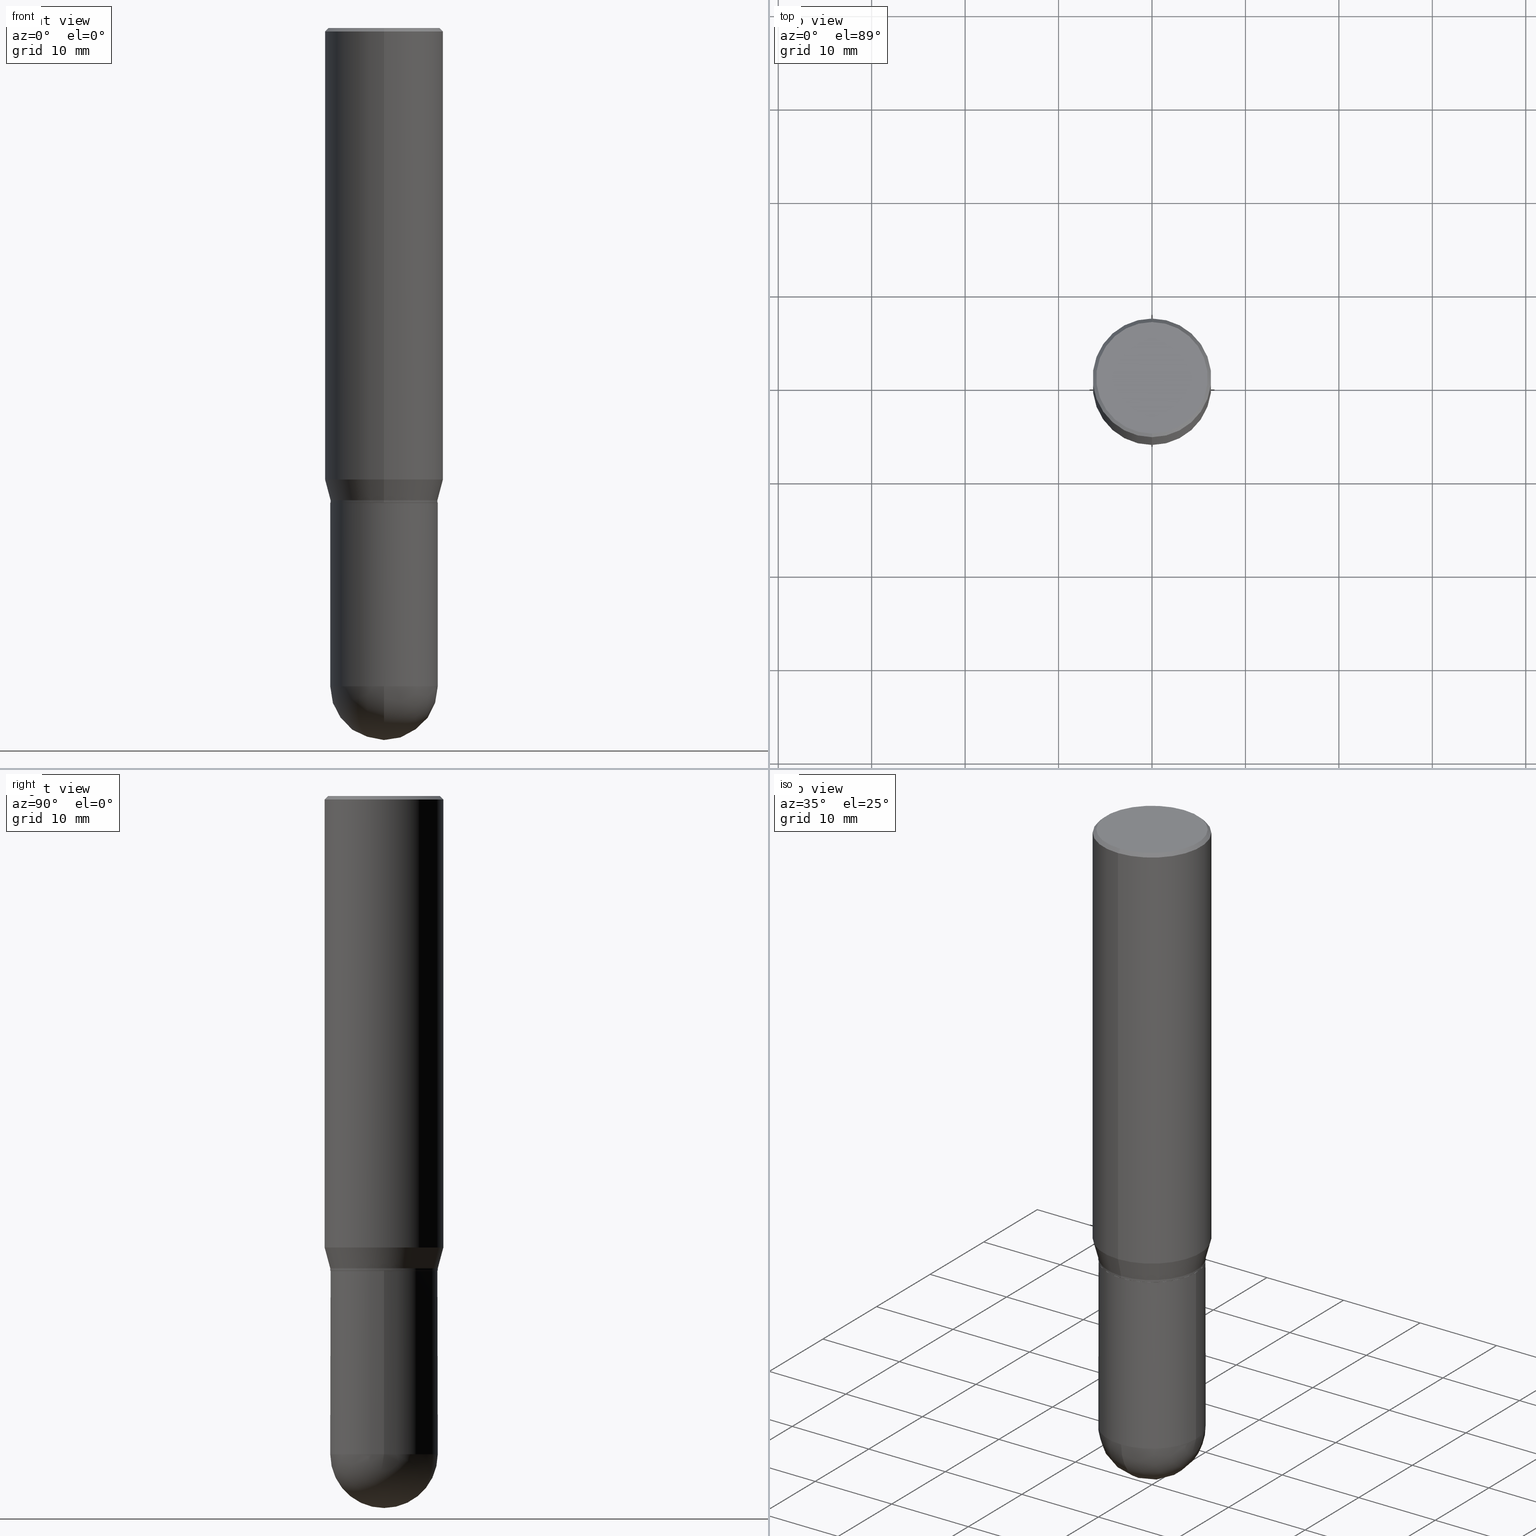
[diagram: canonical four-view strip — front | top / right | iso, engineering-drawing reading convention]
A machine part, canonical four-view strip (front | top / right | iso — engineering-drawing reading convention). The complete STEP part file that produces these views, byte-faithful:
ISO-10303-21;
HEADER;
FILE_DESCRIPTION (( 'STEP AP203' ),
    '1' );
FILE_NAME ('30933.STEP',
    '2024-03-08T15:49:10',
    ( '' ),
    ( '' ),
    'SwSTEP 2.0',
    'SolidWorks 2023',
    '' );
FILE_SCHEMA (( 'CONFIG_CONTROL_DESIGN' ));
ENDSEC;

DATA;
#1 = CARTESIAN_POINT ( 'NONE',  ( 1.581990194629891371E-15, 0.2265499999999903147, -2.773450000000000859 ) ) ;
#2 = AXIS2_PLACEMENT_3D ( 'NONE', #154, #24, #275 ) ;
#3 = DIRECTION ( 'NONE',  ( -6.982962677686265922E-15, -1.000000000000000000, 3.278217592397115862E-15 ) ) ;
#4 = SECURITY_CLASSIFICATION ( '', '', #105 ) ;
#5 = VERTEX_POINT ( 'NONE', #276 ) ;
#6 = FACE_OUTER_BOUND ( 'NONE', #114, .T. ) ;
#7 = FACE_OUTER_BOUND ( 'NONE', #141, .T. ) ;
#8 = EDGE_CURVE ( 'NONE', #92, #375, #74, .T. ) ;
#9 = DIRECTION ( 'NONE',  ( -6.982962677686265922E-15, -1.000000000000000000, 3.617543138818270030E-15 ) ) ;
#10 = VECTOR ( 'NONE', #361, 39.37007874015748143 ) ;
#11 = CARTESIAN_POINT ( 'NONE',  ( 1.776356839400296613E-15, 0.2499999999999933664, -1.902483408562511302 ) ) ;
#12 = EDGE_CURVE ( 'NONE', #355, #31, #91, .T. ) ;
#13 = PLANE ( 'NONE',  #462 ) ;
#14 = PERSON_AND_ORGANIZATION ( #380, #191 ) ;
#15 = PERSON_AND_ORGANIZATION ( #380, #191 ) ;
#16 = CARTESIAN_POINT ( 'NONE',  ( -1.609734567864438547E-15, -0.2265500000000096603, -2.773449999999999971 ) ) ;
#17 = PERSON_AND_ORGANIZATION_ROLE ( 'creator' ) ;
#18 = ORIENTED_EDGE ( 'NONE', *, *, #287, .F. ) ;
#19 = AXIS2_PLACEMENT_3D ( 'NONE', #68, #237, #3 ) ;
#20 = CALENDAR_DATE ( 2024, 8, 3 ) ;
#21 = ORIENTED_EDGE ( 'NONE', *, *, #233, .T. ) ;
#22 = ADVANCED_FACE ( 'NONE', ( #6 ), #402, .T. ) ;
#23 = PERSON_AND_ORGANIZATION ( #380, #191 ) ;
#24 = DIRECTION ( 'NONE',  ( -2.445468806185136597E-29, 3.491481338843145583E-15, 1.000000000000000000 ) ) ;
#25 = ADVANCED_BREP_SHAPE_REPRESENTATION ( '30933', ( #73, #245, #505 ), #464 ) ;
#26 = ORIENTED_EDGE ( 'NONE', *, *, #296, .F. ) ;
#27 = CIRCLE ( 'NONE', #239, 0.2265500000000000291 ) ;
#28 = CARTESIAN_POINT ( 'NONE',  ( 3.668616650604456329E-31, -5.236629936753315584E-17, -0.01500000000000017986 ) ) ;
#29 = EDGE_LOOP ( 'NONE', ( #447, #124, #224, #195 ) ) ;
#30 = DIRECTION ( 'NONE',  ( -6.982962677686265922E-15, -1.000000000000000000, 3.491643216902136408E-15 ) ) ;
#31 = VERTEX_POINT ( 'NONE', #278 ) ;
#32 = CARTESIAN_POINT ( 'NONE',  ( 4.891488867472551570E-29, -6.982173249004339033E-15, -2.000000000000000444 ) ) ;
#33 = CARTESIAN_POINT ( 'NONE',  ( -1.581990194629774028E-15, -0.2265500000000069125, -1.999499999999999611 ) ) ;
#34 = VERTEX_POINT ( 'NONE', #431 ) ;
#35 = AXIS2_PLACEMENT_3D ( 'NONE', #270, #93, #316 ) ;
#36 = CARTESIAN_POINT ( 'NONE',  ( -1.578498713290931613E-15, -0.2260500000000069953, -1.999999999999999334 ) ) ;
#37 = AXIS2_PLACEMENT_3D ( 'NONE', #113, #119, #432 ) ;
#38 = LINE ( 'NONE', #294, #320 ) ;
#39 = AXIS2_PLACEMENT_3D ( 'NONE', #82, #508, #164 ) ;
#40 = DIRECTION ( 'NONE',  ( 1.000000000000000000, -6.982962677686266711E-15, 0.000000000000000000 ) ) ;
#41 = ORIENTED_EDGE ( 'NONE', *, *, #315, .F. ) ;
#42 = COORDINATED_UNIVERSAL_TIME_OFFSET ( 5, 0, .BEHIND. ) ;
#43 = DIRECTION ( 'NONE',  ( 5.024295867788231995E-15, 0.7071067811865739960, 0.7071067811865208164 ) ) ;
#44 = DIRECTION ( 'NONE',  ( 6.982962677686265922E-15, 1.000000000000000000, -2.411695425878847213E-15 ) ) ;
#45 = EDGE_CURVE ( 'NONE', #5, #187, #393, .T. ) ;
#46 = DIRECTION ( 'NONE',  ( -6.982962677686265133E-15, -1.000000000000000000, 3.625544782567037861E-15 ) ) ;
#47 = ORIENTED_EDGE ( 'NONE', *, *, #169, .T. ) ;
#48 = DIRECTION ( 'NONE',  ( -2.445744433736275224E-29, 3.491086624502169122E-15, 1.000000000000000000 ) ) ;
#49 = CLOSED_SHELL ( 'NONE', ( #22, #146, #205, #387, #379 ) ) ;
#50 = MECHANICAL_CONTEXT ( 'NONE', #381, 'mechanical' ) ;
#51 = CIRCLE ( 'NONE', #259, 0.2265500000000000291 ) ;
#52 = FACE_OUTER_BOUND ( 'NONE', #268, .T. ) ;
#53 = EDGE_CURVE ( 'NONE', #127, #503, #376, .T. ) ;
#54 = CIRCLE ( 'NONE', #200, 0.2349999999999999867 ) ;
#55 = VERTEX_POINT ( 'NONE', #446 ) ;
#56 = EDGE_CURVE ( 'NONE', #299, #355, #219, .T. ) ;
#57 = APPROVAL_DATE_TIME ( #411, #511 ) ;
#58 = CARTESIAN_POINT ( 'NONE',  ( 0.000000000000000000, 0.000000000000000000, 0.000000000000000000 ) ) ;
#59 = DIMENSIONAL_EXPONENTS ( 1.000000000000000000, 0.000000000000000000, 0.000000000000000000, 0.000000000000000000, 0.000000000000000000, 0.000000000000000000, 0.000000000000000000 ) ;
#60 = DIRECTION ( 'NONE',  ( -1.000000000000000000, 6.982962677686265922E-15, -4.876176775795935793E-29 ) ) ;
#61 = EDGE_LOOP ( 'NONE', ( #153, #148 ) ) ;
#62 = ORIENTED_EDGE ( 'NONE', *, *, #198, .F. ) ;
#63 = DATE_AND_TIME ( #20, #389 ) ;
#64 = ADVANCED_FACE ( 'NONE', ( #312 ), #131, .T. ) ;
#65 = DIRECTION ( 'NONE',  ( -2.445744433736275224E-29, 3.491086624502168728E-15, 1.000000000000000000 ) ) ;
#66 = ORIENTED_EDGE ( 'NONE', *, *, #481, .F. ) ;
#67 = DIRECTION ( 'NONE',  ( -1.000000000000000000, 6.982962677686265922E-15, -4.883557194083112901E-29 ) ) ;
#68 = CARTESIAN_POINT ( 'NONE',  ( 4.652988206767375455E-29, -6.641734380969875246E-15, -1.902483408562510414 ) ) ;
#69 = ORIENTED_EDGE ( 'NONE', *, *, #438, .F. ) ;
#70 = CONICAL_SURFACE ( 'NONE', #220, 0.2260500000000000287, 0.7853981633974824739 ) ;
#71 = DIRECTION ( 'NONE',  ( -6.982962677686265133E-15, -1.000000000000000000, 3.625544782567037861E-15 ) ) ;
#72 = ADVANCED_FACE ( 'NONE', ( #7 ), #84, .T. ) ;
#73 = MANIFOLD_SOLID_BREP ( 'Body-Move/Copy2[1]', #49 ) ;
#74 = LINE ( 'NONE', #243, #246 ) ;
#75 = ORIENTED_EDGE ( 'NONE', *, *, #12, .F. ) ;
#76 = LINE ( 'NONE', #36, #179 ) ;
#77 = DIRECTION ( 'NONE',  ( -2.445744433736275224E-29, 3.491086624502169122E-15, 1.000000000000000000 ) ) ;
#78 = DIRECTION ( 'NONE',  ( -2.445468806185136597E-29, 3.491481338843145583E-15, 1.000000000000000000 ) ) ;
#79 = CC_DESIGN_PERSON_AND_ORGANIZATION_ASSIGNMENT ( #291, #458, ( #111 ) ) ;
#80 = ORIENTED_EDGE ( 'NONE', *, *, #212, .T. ) ;
#81 = DIRECTION ( 'NONE',  ( -2.445744433736275224E-29, 3.491086624502168728E-15, 1.000000000000000000 ) ) ;
#82 = CARTESIAN_POINT ( 'NONE',  ( 6.784390825462294501E-29, -9.680577122470524352E-15, -2.773450000000000415 ) ) ;
#83 = ORIENTED_EDGE ( 'NONE', *, *, #130, .F. ) ;
#84 = CONICAL_SURFACE ( 'NONE', #109, 0.2500000000000000000, 0.7853981633974485010 ) ;
#85 = DIRECTION ( 'NONE',  ( -2.445744433736275224E-29, 3.491086624502169122E-15, 1.000000000000000000 ) ) ;
#86 = VECTOR ( 'NONE', #102, 39.37007874015748854 ) ;
#87 = APPROVAL_ROLE ( '' ) ;
#88 = EDGE_CURVE ( 'NONE', #349, #187, #257, .T. ) ;
#89 = CARTESIAN_POINT ( 'NONE',  ( 4.379907629666530887E-45, -6.251935701689351000E-31, -1.790828006904836215E-16 ) ) ;
#90 = DIRECTION ( 'NONE',  ( -6.982962677686265922E-15, -1.000000000000000000, 3.491086624502168728E-15 ) ) ;
#91 = LINE ( 'NONE', #356, #10 ) ;
#92 = VERTEX_POINT ( 'NONE', #487 ) ;
#93 = DIRECTION ( 'NONE',  ( -2.445744433736275224E-29, 3.491086624502169122E-15, 1.000000000000000000 ) ) ;
#94 = ORIENTED_EDGE ( 'NONE', *, *, #56, .T. ) ;
#95 = CC_DESIGN_PERSON_AND_ORGANIZATION_ASSIGNMENT ( #366, #177, ( #301 ) ) ;
#96 = AXIS2_PLACEMENT_3D ( 'NONE', #348, #193, #157 ) ;
#97 = CARTESIAN_POINT ( 'NONE',  ( 6.784390825462294501E-29, -9.680577122470524352E-15, -2.773450000000000415 ) ) ;
#98 = CARTESIAN_POINT ( 'NONE',  ( 1.609734567864506586E-15, 0.2265499999999999736, -7.909056747809663177E-16 ) ) ;
#99 = ADVANCED_FACE ( 'NONE', ( #235 ), #134, .T. ) ;
#100 = CARTESIAN_POINT ( 'NONE',  ( 0.000000000000000000, 0.000000000000000000, 0.000000000000000000 ) ) ;
#101 = APPROVAL_ROLE ( '' ) ;
#102 = DIRECTION ( 'NONE',  ( -1.807323732225331717E-15, -0.2588190451025184080, 0.9659258262890689783 ) ) ;
#103 = VECTOR ( 'NONE', #394, 39.37007874015748143 ) ;
#104 = FACE_OUTER_BOUND ( 'NONE', #322, .T. ) ;
#105 = SECURITY_CLASSIFICATION_LEVEL ( 'unclassified' ) ;
#106 = CC_DESIGN_PERSON_AND_ORGANIZATION_ASSIGNMENT ( #463, #256, ( #4 ) ) ;
#107 = ORIENTED_EDGE ( 'NONE', *, *, #481, .T. ) ;
#108 = EDGE_CURVE ( 'NONE', #55, #349, #76, .T. ) ;
#109 = AXIS2_PLACEMENT_3D ( 'NONE', #242, #121, #440 ) ;
#110 = AXIS2_PLACEMENT_3D ( 'NONE', #465, #436, #391 ) ;
#111 = PRODUCT_DEFINITION_FORMATION_WITH_SPECIFIED_SOURCE ( 'ANY', '', #301, .NOT_KNOWN. ) ;
#112 = COORDINATED_UNIVERSAL_TIME_OFFSET ( 5, 0, .BEHIND. ) ;
#113 = CARTESIAN_POINT ( 'NONE',  ( 4.867031423135188700E-29, -6.947262382759317484E-15, -1.990000000000000435 ) ) ;
#114 = EDGE_LOOP ( 'NONE', ( #176, #488, #26, #41, #263 ) ) ;
#115 = CARTESIAN_POINT ( 'NONE',  ( 6.784390825462294501E-29, -9.680577122470524352E-15, -2.773450000000000415 ) ) ;
#116 = EDGE_CURVE ( 'NONE', #426, #240, #128, .T. ) ;
#117 = ORIENTED_EDGE ( 'NONE', *, *, #360, .T. ) ;
#118 = DIRECTION ( 'NONE',  ( -2.445744433736275224E-29, 3.491086624502168728E-15, 1.000000000000000000 ) ) ;
#119 = DIRECTION ( 'NONE',  ( -2.445744433736275224E-29, 3.491086624502169122E-15, 1.000000000000000000 ) ) ;
#120 = ORIENTED_EDGE ( 'NONE', *, *, #248, .F. ) ;
#121 = DIRECTION ( 'NONE',  ( 2.445744433736275224E-29, -3.491086624502169122E-15, -1.000000000000000000 ) ) ;
#122 = DIRECTION ( 'NONE',  ( 1.839019923739601893E-15, 0.2588190451025252359, 0.9659258262890670910 ) ) ;
#123 = DIRECTION ( 'NONE',  ( -2.445744433736275224E-29, 3.491086624502169122E-15, 1.000000000000000000 ) ) ;
#124 = ORIENTED_EDGE ( 'NONE', *, *, #327, .T. ) ;
#125 = DIRECTION ( 'NONE',  ( 2.445744433736275224E-29, -3.491086624502169122E-15, -1.000000000000000000 ) ) ;
#126 =( NAMED_UNIT ( * ) SI_UNIT ( $, .STERADIAN. ) SOLID_ANGLE_UNIT ( ) );
#127 = VERTEX_POINT ( 'NONE', #308 ) ;
#128 = LINE ( 'NONE', #350, #151 ) ;
#129 = CARTESIAN_POINT ( 'NONE',  ( 6.784390825462294501E-29, -9.680577122470524352E-15, -2.773450000000000415 ) ) ;
#130 = EDGE_CURVE ( 'NONE', #355, #299, #54, .T. ) ;
#131 = CONICAL_SURFACE ( 'NONE', #161, 0.2260500000000000287, 0.7853981633974824739 ) ;
#132 = AXIS2_PLACEMENT_3D ( 'NONE', #216, #415, #499 ) ;
#133 = APPROVAL_PERSON_ORGANIZATION ( #14, #404, #87 ) ;
#134 = CYLINDRICAL_SURFACE ( 'NONE', #238, 0.2500000000000000000 ) ;
#135 = CC_DESIGN_DATE_AND_TIME_ASSIGNMENT ( #371, #325, ( #496 ) ) ;
#136 = DIRECTION ( 'NONE',  ( -6.982962677686265922E-15, -1.000000000000000000, 3.491086624502169122E-15 ) ) ;
#137 = CYLINDRICAL_SURFACE ( 'NONE', #182, 0.2265499999999999736 ) ;
#138 = CC_DESIGN_SECURITY_CLASSIFICATION ( #4, ( #111 ) ) ;
#139 = APPROVAL_STATUS ( 'not_yet_approved' ) ;
#140 = APPROVAL_DATE_TIME ( #493, #404 ) ;
#141 = EDGE_LOOP ( 'NONE', ( #75, #430, #470, #80 ) ) ;
#142 = DIRECTION ( 'NONE',  ( -6.982962677686265922E-15, -1.000000000000000000, 3.491086624502169122E-15 ) ) ;
#143 = ADVANCED_FACE ( 'NONE', ( #455 ), #452, .T. ) ;
#144 = CARTESIAN_POINT ( 'NONE',  ( 4.652988206767375455E-29, -6.641734380969875246E-15, -1.902483408562510414 ) ) ;
#145 = ORIENTED_EDGE ( 'NONE', *, *, #272, .T. ) ;
#146 = ADVANCED_FACE ( 'NONE', ( #284 ), #449, .T. ) ;
#147 = DIRECTION ( 'NONE',  ( -2.445468806185136597E-29, 3.491481338843145583E-15, 1.000000000000000000 ) ) ;
#148 = ORIENTED_EDGE ( 'NONE', *, *, #225, .T. ) ;
#149 = CARTESIAN_POINT ( 'NONE',  ( 4.890937612370273754E-29, -6.982962677686291954E-15, -2.000000000000000444 ) ) ;
#150 = LINE ( 'NONE', #297, #86 ) ;
#151 = VECTOR ( 'NONE', #81, 39.37007874015748143 ) ;
#152 = AXIS2_PLACEMENT_3D ( 'NONE', #479, #48, #208 ) ;
#153 = ORIENTED_EDGE ( 'NONE', *, *, #296, .T. ) ;
#154 = CARTESIAN_POINT ( 'NONE',  ( 6.782385460514168389E-29, -9.683448919214523504E-15, -2.773450000000000415 ) ) ;
#155 = ADVANCED_FACE ( 'NONE', ( #408 ), #13, .F. ) ;
#156 = EDGE_LOOP ( 'NONE', ( #21, #229, #188, #269 ) ) ;
#157 = DIRECTION ( 'NONE',  ( -6.982962677686265922E-15, -1.000000000000000000, 3.617543138818270030E-15 ) ) ;
#158 = ORIENTED_EDGE ( 'NONE', *, *, #53, .T. ) ;
#159 = CARTESIAN_POINT ( 'NONE',  ( 0.000000000000000000, 0.000000000000000000, 0.000000000000000000 ) ) ;
#160 = CARTESIAN_POINT ( 'NONE',  ( 4.891488867472551570E-29, -6.982173249004339033E-15, -2.000000000000000444 ) ) ;
#161 = AXIS2_PLACEMENT_3D ( 'NONE', #32, #359, #46 ) ;
#162 = VERTEX_POINT ( 'NONE', #16 ) ;
#163 = VECTOR ( 'NONE', #474, 39.37007874015748143 ) ;
#164 = DIRECTION ( 'NONE',  ( -7.105427357601000281E-15, -1.000000000000000000, 0.000000000000000000 ) ) ;
#165 = DIRECTION ( 'NONE',  ( -2.445468806185136597E-29, 3.491481338843145583E-15, 1.000000000000000000 ) ) ;
#166 = ORIENTED_EDGE ( 'NONE', *, *, #336, .F. ) ;
#167 = CARTESIAN_POINT ( 'NONE',  ( 0.000000000000000000, 0.000000000000000000, 0.000000000000000000 ) ) ;
#168 = FACE_OUTER_BOUND ( 'NONE', #344, .T. ) ;
#169 = EDGE_CURVE ( 'NONE', #34, #426, #448, .T. ) ;
#170 = CARTESIAN_POINT ( 'NONE',  ( 1.609734567864555693E-15, 0.2265499999999930347, -1.999500000000001165 ) ) ;
#171 = PRODUCT_RELATED_PRODUCT_CATEGORY ( 'detail', '', ( #301 ) ) ;
#172 = DIRECTION ( 'NONE',  ( -4.937700262164715281E-15, -0.7071067811865691111, 0.7071067811865257013 ) ) ;
#173 = CIRCLE ( 'NONE', #2, 0.2265500000000000291 ) ;
#174 = ADVANCED_FACE ( 'NONE', ( #273 ), #70, .T. ) ;
#175 = DIRECTION ( 'NONE',  ( 1.000000000000000000, -6.982962677686265922E-15, 4.883557194083112340E-29 ) ) ;
#176 = ORIENTED_EDGE ( 'NONE', *, *, #183, .T. ) ;
#177 = PERSON_AND_ORGANIZATION_ROLE ( 'design_owner' ) ;
#178 = CARTESIAN_POINT ( 'NONE',  ( 1.640996229256272519E-15, 0.2349999999999999867, -9.099467571032515949E-16 ) ) ;
#179 = VECTOR ( 'NONE', #172, 39.37007874015748854 ) ;
#180 = PERSON_AND_ORGANIZATION ( #380, #191 ) ;
#181 = CIRCLE ( 'NONE', #213, 0.2500000000000000000 ) ;
#182 = AXIS2_PLACEMENT_3D ( 'NONE', #58, #339, #142 ) ;
#183 = EDGE_CURVE ( 'NONE', #385, #92, #342, .T. ) ;
#184 = LINE ( 'NONE', #98, #443 ) ;
#185 = AXIS2_PLACEMENT_3D ( 'NONE', #144, #289, #412 ) ;
#186 = EDGE_CURVE ( 'NONE', #426, #34, #475, .T. ) ;
#187 = VERTEX_POINT ( 'NONE', #170 ) ;
#188 = ORIENTED_EDGE ( 'NONE', *, *, #88, .F. ) ;
#189 = CARTESIAN_POINT ( 'NONE',  ( 4.891488867472551570E-29, -6.982173249004339033E-15, -2.000000000000000444 ) ) ;
#190 = CARTESIAN_POINT ( 'NONE',  ( 0.000000000000000000, 0.000000000000000000, 0.000000000000000000 ) ) ;
#191 = ORGANIZATION ( 'UNSPECIFIED', 'UNSPECIFIED', '' ) ;
#192 = ORIENTED_EDGE ( 'NONE', *, *, #507, .F. ) ;
#193 = DIRECTION ( 'NONE',  ( -2.445744433736275224E-29, 3.491086624502169122E-15, 1.000000000000000000 ) ) ;
#194 = CARTESIAN_POINT ( 'NONE',  ( -0.2265500000000000291, -6.723471230585900551E-15, -2.000000000000000444 ) ) ;
#195 = ORIENTED_EDGE ( 'NONE', *, *, #360, .F. ) ;
#196 = CARTESIAN_POINT ( 'NONE',  ( 3.668616650604456329E-31, -5.236629936753315584E-17, -0.01500000000000017986 ) ) ;
#197 = LENGTH_MEASURE_WITH_UNIT ( LENGTH_MEASURE( 0.02539999999999999897 ), #310 );
#198 = EDGE_CURVE ( 'NONE', #405, #385, #27, .T. ) ;
#199 = ORIENTED_EDGE ( 'NONE', *, *, #315, .T. ) ;
#200 = AXIS2_PLACEMENT_3D ( 'NONE', #478, #395, #326 ) ;
#201 = DIRECTION ( 'NONE',  ( 1.000000000000000000, -6.982962677686266711E-15, 0.000000000000000000 ) ) ;
#202 = FACE_OUTER_BOUND ( 'NONE', #61, .T. ) ;
#203 = DIRECTION ( 'NONE',  ( -6.982962677686265922E-15, -1.000000000000000000, 3.491086624502169122E-15 ) ) ;
#204 = CARTESIAN_POINT ( 'NONE',  ( 0.2265500000000000291, -9.915195993080232639E-15, -2.773450000000000415 ) ) ;
#205 = ADVANCED_FACE ( 'NONE', ( #202 ), #358, .F. ) ;
#206 = DIRECTION ( 'NONE',  ( -2.445468806185136597E-29, 3.491481338843145583E-15, 1.000000000000000000 ) ) ;
#207 = ORIENTED_EDGE ( 'NONE', *, *, #365, .T. ) ;
#208 = DIRECTION ( 'NONE',  ( -6.982962677686265922E-15, -1.000000000000000000, 3.617543138818270030E-15 ) ) ;
#209 = AXIS2_PLACEMENT_3D ( 'NONE', #433, #78, #352 ) ;
#210 = DIRECTION ( 'NONE',  ( 2.438088387897960049E-29, -3.491481338843145188E-15, -1.000000000000000000 ) ) ;
#211 = DIRECTION ( 'NONE',  ( 0.000000000000000000, 0.000000000000000000, 1.000000000000000000 ) ) ;
#212 = EDGE_CURVE ( 'NONE', #240, #31, #377, .T. ) ;
#213 = AXIS2_PLACEMENT_3D ( 'NONE', #196, #261, #30 ) ;
#214 = PERSON_AND_ORGANIZATION ( #380, #191 ) ;
#215 = ORIENTED_EDGE ( 'NONE', *, *, #492, .T. ) ;
#216 = CARTESIAN_POINT ( 'NONE',  ( 3.668616650604456329E-31, -5.236629936753315584E-17, -0.01500000000000017986 ) ) ;
#217 = CC_DESIGN_PERSON_AND_ORGANIZATION_ASSIGNMENT ( #180, #17, ( #496 ) ) ;
#218 = EDGE_LOOP ( 'NONE', ( #302, #215, #265, #199, #285 ) ) ;
#219 = CIRCLE ( 'NONE', #290, 0.2349999999999999867 ) ;
#220 = AXIS2_PLACEMENT_3D ( 'NONE', #160, #123, #425 ) ;
#221 = DIRECTION ( 'NONE',  ( -6.982962677686265133E-15, -1.000000000000000000, 3.625544782567037861E-15 ) ) ;
#222 = APPROVAL_ROLE ( '' ) ;
#223 = CARTESIAN_POINT ( 'NONE',  ( 6.782385460514168389E-29, -9.683448919214523504E-15, -2.773450000000000415 ) ) ;
#224 = ORIENTED_EDGE ( 'NONE', *, *, #108, .T. ) ;
#225 = EDGE_CURVE ( 'NONE', #375, #501, #407, .T. ) ;
#226 = LINE ( 'NONE', #264, #103 ) ;
#227 = AXIS2_PLACEMENT_3D ( 'NONE', #428, #77, #71 ) ;
#228 = LOCAL_TIME ( 10, 49, 10.00000000000000000, #254 ) ;
#229 = ORIENTED_EDGE ( 'NONE', *, *, #45, .T. ) ;
#230 = CARTESIAN_POINT ( 'NONE',  ( -1.581990194629823332E-15, -0.2265499999999999736, 7.909056747809663177E-16 ) ) ;
#231 = ORIENTED_EDGE ( 'NONE', *, *, #53, .F. ) ;
#232 = FACE_OUTER_BOUND ( 'NONE', #434, .T. ) ;
#233 = EDGE_CURVE ( 'NONE', #55, #5, #485, .T. ) ;
#234 = DESIGN_CONTEXT ( 'detailed design', #466, 'design' ) ;
#235 = FACE_OUTER_BOUND ( 'NONE', #335, .T. ) ;
#236 = CARTESIAN_POINT ( 'NONE',  ( 7.348098679644216605E-29, -1.045770003316809804E-14, -3.000000000000000444 ) ) ;
#237 = DIRECTION ( 'NONE',  ( -2.445744433736275224E-29, 3.491086624502169122E-15, 1.000000000000000000 ) ) ;
#238 = AXIS2_PLACEMENT_3D ( 'NONE', #363, #85, #203 ) ;
#239 = AXIS2_PLACEMENT_3D ( 'NONE', #346, #165, #40 ) ;
#240 = VERTEX_POINT ( 'NONE', #510 ) ;
#241 = EDGE_CURVE ( 'NONE', #127, #426, #357, .T. ) ;
#242 = CARTESIAN_POINT ( 'NONE',  ( 3.668616650604456329E-31, -5.236629936753315584E-17, -0.01500000000000017986 ) ) ;
#243 = CARTESIAN_POINT ( 'NONE',  ( -0.2265500000000000291, 1.609734567864507178E-15, -1.114384744697249003E-29 ) ) ;
#244 = DIRECTION ( 'NONE',  ( -2.445744433736275224E-29, 3.491086624502169122E-15, 1.000000000000000000 ) ) ;
#245 = MANIFOLD_SOLID_BREP ( 'Body-Move/Copy2[2]', #418 ) ;
#246 = VECTOR ( 'NONE', #282, 39.37007874015748143 ) ;
#247 = LOCAL_TIME ( 10, 49, 10.00000000000000000, #42 ) ;
#248 = EDGE_CURVE ( 'NONE', #333, #162, #490, .T. ) ;
#249 = ORIENTED_EDGE ( 'NONE', *, *, #169, .F. ) ;
#250 = CALENDAR_DATE ( 2024, 8, 3 ) ;
#251 = AXIS2_PLACEMENT_3D ( 'NONE', #97, #367, #321 ) ;
#252 = APPROVAL_PERSON_ORGANIZATION ( #23, #427, #222 ) ;
#253 = ADVANCED_FACE ( 'NONE', ( #471 ), #295, .T. ) ;
#254 = COORDINATED_UNIVERSAL_TIME_OFFSET ( 5, 0, .BEHIND. ) ;
#255 = ORIENTED_EDGE ( 'NONE', *, *, #248, .T. ) ;
#256 = PERSON_AND_ORGANIZATION_ROLE ( 'classification_officer' ) ;
#257 = CIRCLE ( 'NONE', #35, 0.2265499999999999736 ) ;
#258 = AXIS2_PLACEMENT_3D ( 'NONE', #189, #345, #221 ) ;
#259 = AXIS2_PLACEMENT_3D ( 'NONE', #149, #383, #201 ) ;
#260 = EDGE_LOOP ( 'NONE', ( #311, #373 ) ) ;
#261 = DIRECTION ( 'NONE',  ( -2.445744433736275224E-29, 3.491086624502169122E-15, 1.000000000000000000 ) ) ;
#262 = ADVANCED_FACE ( 'NONE', ( #232 ), #305, .T. ) ;
#263 = ORIENTED_EDGE ( 'NONE', *, *, #198, .T. ) ;
#264 = CARTESIAN_POINT ( 'NONE',  ( 1.745740669421566875E-15, 0.2499999999999999167, -0.01500000000000105242 ) ) ;
#265 = ORIENTED_EDGE ( 'NONE', *, *, #347, .T. ) ;
#266 = DIRECTION ( 'NONE',  ( -2.445468806185136877E-29, 3.491481338843145188E-15, 1.000000000000000000 ) ) ;
#267 = VECTOR ( 'NONE', #122, 39.37007874015748854 ) ;
#268 = EDGE_LOOP ( 'NONE', ( #274, #107, #417, #166 ) ) ;
#269 = ORIENTED_EDGE ( 'NONE', *, *, #108, .F. ) ;
#270 = CARTESIAN_POINT ( 'NONE',  ( 4.890265995255682922E-29, -6.980427705692087522E-15, -1.999500000000000277 ) ) ;
#271 = DIRECTION ( 'NONE',  ( 6.982962677686265922E-15, 1.000000000000000000, -3.491643216902136408E-15 ) ) ;
#272 = EDGE_CURVE ( 'NONE', #503, #127, #331, .T. ) ;
#273 = FACE_OUTER_BOUND ( 'NONE', #29, .T. ) ;
#274 = ORIENTED_EDGE ( 'NONE', *, *, #88, .T. ) ;
#275 = DIRECTION ( 'NONE',  ( 1.000000000000000000, -6.982962677686266711E-15, 0.000000000000000000 ) ) ;
#276 = CARTESIAN_POINT ( 'NONE',  ( 1.607958211025155638E-15, 0.2260499999999930620, -2.000000000000000888 ) ) ;
#277 = EDGE_LOOP ( 'NONE', ( #47, #401, #512, #69 ) ) ;
#278 = CARTESIAN_POINT ( 'NONE',  ( -1.745740669421565889E-15, -0.2500000000000000555, -0.01499999999999930729 ) ) ;
#279 = AXIS2_PLACEMENT_3D ( 'NONE', #167, #206, #484 ) ;
#280 = AXIS2_PLACEMENT_3D ( 'NONE', #129, #175, #400 ) ;
#281 = CC_DESIGN_APPROVAL ( #511, ( #111 ) ) ;
#282 = DIRECTION ( 'NONE',  ( -2.445468806185136877E-29, 3.491481338843145188E-15, 1.000000000000000000 ) ) ;
#283 = DIRECTION ( 'NONE',  ( -2.445744433736275224E-29, 3.491086624502169122E-15, 1.000000000000000000 ) ) ;
#284 = FACE_OUTER_BOUND ( 'NONE', #498, .T. ) ;
#285 = ORIENTED_EDGE ( 'NONE', *, *, #225, .F. ) ;
#286 = CIRCLE ( 'NONE', #110, 0.2265499999999999736 ) ;
#287 = EDGE_CURVE ( 'NONE', #299, #240, #226, .T. ) ;
#288 = CARTESIAN_POINT ( 'NONE',  ( 4.890937612370273754E-29, -6.982962677686291954E-15, -2.000000000000000444 ) ) ;
#289 = DIRECTION ( 'NONE',  ( -2.445744433736275224E-29, 3.491086624502169122E-15, 1.000000000000000000 ) ) ;
#290 = AXIS2_PLACEMENT_3D ( 'NONE', #89, #244, #435 ) ;
#291 = PERSON_AND_ORGANIZATION ( #380, #191 ) ;
#292 = CALENDAR_DATE ( 2024, 8, 3 ) ;
#293 = DIRECTION ( 'NONE',  ( 1.000000000000000000, -6.982962677686266711E-15, 0.000000000000000000 ) ) ;
#294 = CARTESIAN_POINT ( 'NONE',  ( 0.2265500000000000291, -1.581990194629823924E-15, 1.104697848556569421E-29 ) ) ;
#295 = CONICAL_SURFACE ( 'NONE', #354, 0.2500000000000000000, 0.7853981633974485010 ) ;
#296 = EDGE_CURVE ( 'NONE', #501, #375, #51, .T. ) ;
#297 = CARTESIAN_POINT ( 'NONE',  ( -1.581990194629774423E-15, -0.2265500000000069125, -1.989999999999999547 ) ) ;
#298 = LOCAL_TIME ( 10, 49, 10.00000000000000000, #328 ) ;
#299 = VERTEX_POINT ( 'NONE', #341 ) ;
#300 = SPHERICAL_SURFACE ( 'NONE', #419, 0.2265499999999999459 ) ;
#301 = PRODUCT ( '30933', '30933', '', ( #50 ) ) ;
#302 = ORIENTED_EDGE ( 'NONE', *, *, #8, .F. ) ;
#303 = DIRECTION ( 'NONE',  ( -2.445468806185136597E-29, 3.491481338843145583E-15, 1.000000000000000000 ) ) ;
#304 =( NAMED_UNIT ( * ) PLANE_ANGLE_UNIT ( ) SI_UNIT ( $, .RADIAN. ) );
#305 = CONICAL_SURFACE ( 'NONE', #37, 0.2265499999999999736, 0.2617993877991505181 ) ;
#306 = CIRCLE ( 'NONE', #457, 0.2265500000000000291 ) ;
#307 = ORIENTED_EDGE ( 'NONE', *, *, #241, .F. ) ;
#308 = CARTESIAN_POINT ( 'NONE',  ( 1.693045703632425956E-15, 0.2265499999999930347, -1.990000000000001101 ) ) ;
#309 = LINE ( 'NONE', #230, #163 ) ;
#310 =( LENGTH_UNIT ( ) NAMED_UNIT ( * ) SI_UNIT ( $, .METRE. ) );
#311 = ORIENTED_EDGE ( 'NONE', *, *, #233, .F. ) ;
#312 = FACE_OUTER_BOUND ( 'NONE', #156, .T. ) ;
#313 = DIRECTION ( 'NONE',  ( -2.445744433736275224E-29, 3.491086624502168728E-15, 1.000000000000000000 ) ) ;
#314 = CARTESIAN_POINT ( 'NONE',  ( 1.581990194629872833E-15, 0.2265499999999930625, -2.000000000000000888 ) ) ;
#315 = EDGE_CURVE ( 'NONE', #405, #501, #38, .T. ) ;
#316 = DIRECTION ( 'NONE',  ( -6.982962677686265922E-15, -1.000000000000000000, 3.617543138818270030E-15 ) ) ;
#317 = DIRECTION ( 'NONE',  ( 1.000000000000000000, 0.000000000000000000, 0.000000000000000000 ) ) ;
#318 = CARTESIAN_POINT ( 'NONE',  ( -1.745740669421566480E-15, -0.2500000000000000000, 8.727716561255422806E-16 ) ) ;
#319 = APPROVAL_STATUS ( 'not_yet_approved' ) ;
#320 = VECTOR ( 'NONE', #266, 39.37007874015748143 ) ;
#321 = DIRECTION ( 'NONE',  ( 6.982962677686265922E-15, 1.000000000000000000, -2.411695425878847213E-15 ) ) ;
#322 = EDGE_LOOP ( 'NONE', ( #66, #117, #369, #231 ) ) ;
#323 = CYLINDRICAL_SURFACE ( 'NONE', #343, 0.2265499999999999736 ) ;
#324 = APPROVAL_PERSON_ORGANIZATION ( #15, #511, #101 ) ;
#325 = DATE_TIME_ROLE ( 'creation_date' ) ;
#326 = DIRECTION ( 'NONE',  ( -6.982962677686266711E-15, -1.000000000000000000, 3.491086624502169122E-15 ) ) ;
#327 = EDGE_CURVE ( 'NONE', #5, #55, #388, .T. ) ;
#328 = COORDINATED_UNIVERSAL_TIME_OFFSET ( 5, 0, .BEHIND. ) ;
#329 = ORIENTED_EDGE ( 'NONE', *, *, #241, .T. ) ;
#330 = COORDINATED_UNIVERSAL_TIME_OFFSET ( 5, 0, .BEHIND. ) ;
#331 = CIRCLE ( 'NONE', #96, 0.2265499999999999736 ) ;
#332 = DIRECTION ( 'NONE',  ( 1.000000000000000000, -6.982962677686266711E-15, 0.000000000000000000 ) ) ;
#333 = VERTEX_POINT ( 'NONE', #236 ) ;
#334 = CARTESIAN_POINT ( 'NONE',  ( 0.2265500000000000291, -8.564952872316116075E-15, -2.000000000000000444 ) ) ;
#335 = EDGE_LOOP ( 'NONE', ( #340, #409, #477, #439 ) ) ;
#336 = EDGE_CURVE ( 'NONE', #349, #503, #309, .T. ) ;
#337 = DATE_TIME_ROLE ( 'classification_date' ) ;
#338 = CALENDAR_DATE ( 2024, 8, 3 ) ;
#339 = DIRECTION ( 'NONE',  ( -2.445744433736275224E-29, 3.491086624502169122E-15, 1.000000000000000000 ) ) ;
#340 = ORIENTED_EDGE ( 'NONE', *, *, #116, .F. ) ;
#341 = CARTESIAN_POINT ( 'NONE',  ( 1.693368449338919598E-15, 0.2349999999999999867, -9.994881574484934303E-16 ) ) ;
#342 = CIRCLE ( 'NONE', #209, 0.2265500000000000291 ) ;
#343 = AXIS2_PLACEMENT_3D ( 'NONE', #453, #421, #374 ) ;
#344 = EDGE_LOOP ( 'NONE', ( #307, #158, #423, #392 ) ) ;
#345 = DIRECTION ( 'NONE',  ( -2.445744433736275224E-29, 3.491086624502169122E-15, 1.000000000000000000 ) ) ;
#346 = CARTESIAN_POINT ( 'NONE',  ( 6.782385460514168389E-29, -9.683448919214523504E-15, -2.773450000000000415 ) ) ;
#347 = EDGE_CURVE ( 'NONE', #162, #405, #173, .T. ) ;
#348 = CARTESIAN_POINT ( 'NONE',  ( 4.867031423135188700E-29, -6.947262382759317484E-15, -1.990000000000000435 ) ) ;
#349 = VERTEX_POINT ( 'NONE', #33 ) ;
#350 = CARTESIAN_POINT ( 'NONE',  ( 1.776356839400250267E-15, 0.2500000000000000000, -8.727716561255422806E-16 ) ) ;
#351 = FACE_OUTER_BOUND ( 'NONE', #218, .T. ) ;
#352 = DIRECTION ( 'NONE',  ( 1.000000000000000000, -6.982962677686266711E-15, 0.000000000000000000 ) ) ;
#353 =( CONVERSION_BASED_UNIT ( 'INCH', #197 ) LENGTH_UNIT ( ) NAMED_UNIT ( #59 ) );
#354 = AXIS2_PLACEMENT_3D ( 'NONE', #28, #125, #271 ) ;
#355 = VERTEX_POINT ( 'NONE', #386 ) ;
#356 = CARTESIAN_POINT ( 'NONE',  ( -1.715124499442882299E-15, -0.2500000000000000555, -0.01499999999999930729 ) ) ;
#357 = LINE ( 'NONE', #424, #267 ) ;
#358 = PLANE ( 'NONE',  #497 ) ;
#359 = DIRECTION ( 'NONE',  ( -2.445744433736275224E-29, 3.491086624502169122E-15, 1.000000000000000000 ) ) ;
#360 = EDGE_CURVE ( 'NONE', #187, #349, #286, .T. ) ;
#361 = DIRECTION ( 'NONE',  ( -4.851104656540965064E-15, -0.7071067811865501263, -0.7071067811865449082 ) ) ;
#362 = AXIS2_PLACEMENT_3D ( 'NONE', #288, #147, #293 ) ;
#363 = CARTESIAN_POINT ( 'NONE',  ( 0.000000000000000000, 0.000000000000000000, 0.000000000000000000 ) ) ;
#364 = LINE ( 'NONE', #318, #368 ) ;
#365 = EDGE_CURVE ( 'NONE', #31, #240, #181, .T. ) ;
#366 = PERSON_AND_ORGANIZATION ( #380, #191 ) ;
#367 = DIRECTION ( 'NONE',  ( -1.000000000000000000, 6.982962677686265922E-15, -4.883557194083112901E-29 ) ) ;
#368 = VECTOR ( 'NONE', #313, 39.37007874015748143 ) ;
#369 = ORIENTED_EDGE ( 'NONE', *, *, #336, .T. ) ;
#370 = LOCAL_TIME ( 10, 49, 10.00000000000000000, #330 ) ;
#371 = DATE_AND_TIME ( #292, #370 ) ;
#372 = DIRECTION ( 'NONE',  ( 6.982962677686265922E-15, 1.000000000000000000, -3.491086624502168728E-15 ) ) ;
#373 = ORIENTED_EDGE ( 'NONE', *, *, #327, .F. ) ;
#374 = DIRECTION ( 'NONE',  ( -6.982962677686265922E-15, -1.000000000000000000, 3.491086624502169122E-15 ) ) ;
#375 = VERTEX_POINT ( 'NONE', #194 ) ;
#376 = CIRCLE ( 'NONE', #441, 0.2265499999999999736 ) ;
#377 = CIRCLE ( 'NONE', #132, 0.2500000000000000000 ) ;
#378 = DIRECTION ( 'NONE',  ( -2.445468806185136597E-29, 3.491481338843145583E-15, 1.000000000000000000 ) ) ;
#379 = ADVANCED_FACE ( 'NONE', ( #351 ), #480, .T. ) ;
#380 = PERSON ( 'UNSPECIFIED', 'UNSPECIFIED', 'UNSPECIFIED', ('UNSPECIFIED'), ('UNSPECIFIED'), ('UNSPECIFIED') ) ;
#381 = APPLICATION_CONTEXT ( 'configuration controlled 3d designs of mechanical parts and assemblies' ) ;
#382 = ORIENTED_EDGE ( 'NONE', *, *, #445, .T. ) ;
#383 = DIRECTION ( 'NONE',  ( -2.445468806185136597E-29, 3.491481338843145583E-15, 1.000000000000000000 ) ) ;
#384 = DATE_AND_TIME ( #338, #228 ) ;
#385 = VERTEX_POINT ( 'NONE', #1 ) ;
#386 = CARTESIAN_POINT ( 'NONE',  ( -1.663670764459595899E-15, -0.2349999999999999867, 6.413225560675259901E-16 ) ) ;
#387 = ADVANCED_FACE ( 'NONE', ( #396 ), #300, .T. ) ;
#388 = CIRCLE ( 'NONE', #227, 0.2260500000000000287 ) ;
#389 = LOCAL_TIME ( 10, 49, 10.00000000000000000, #112 ) ;
#390 = EDGE_LOOP ( 'NONE', ( #83, #509, #207, #18 ) ) ;
#391 = DIRECTION ( 'NONE',  ( -6.982962677686265922E-15, -1.000000000000000000, 3.617543138818270030E-15 ) ) ;
#392 = ORIENTED_EDGE ( 'NONE', *, *, #186, .F. ) ;
#393 = LINE ( 'NONE', #444, #489 ) ;
#394 = DIRECTION ( 'NONE',  ( 4.937700262164548831E-15, 0.7071067811865452413, -0.7071067811865497932 ) ) ;
#395 = DIRECTION ( 'NONE',  ( -2.445744433736275224E-29, 3.491086624502169122E-15, 1.000000000000000000 ) ) ;
#396 = FACE_OUTER_BOUND ( 'NONE', #482, .T. ) ;
#397 = AXIS2_PLACEMENT_3D ( 'NONE', #459, #118, #90 ) ;
#398 = ADVANCED_FACE ( 'NONE', ( #506 ), #403, .F. ) ;
#399 = ORIENTED_EDGE ( 'NONE', *, *, #492, .F. ) ;
#400 = DIRECTION ( 'NONE',  ( 6.982962677686265133E-15, 1.000000000000000000, 0.000000000000000000 ) ) ;
#401 = ORIENTED_EDGE ( 'NONE', *, *, #116, .T. ) ;
#402 = CYLINDRICAL_SURFACE ( 'NONE', #279, 0.2265500000000000291 ) ;
#403 = PLANE ( 'NONE',  #397 ) ;
#404 = APPROVAL ( #319, 'UNSPECIFIED' ) ;
#405 = VERTEX_POINT ( 'NONE', #204 ) ;
#406 = DIRECTION ( 'NONE',  ( -2.445744433736275224E-29, 3.491086624502169122E-15, 1.000000000000000000 ) ) ;
#407 = CIRCLE ( 'NONE', #362, 0.2265500000000000291 ) ;
#408 = FACE_OUTER_BOUND ( 'NONE', #420, .T. ) ;
#409 = ORIENTED_EDGE ( 'NONE', *, *, #186, .T. ) ;
#410 = CC_DESIGN_APPROVAL ( #404, ( #496 ) ) ;
#411 = DATE_AND_TIME ( #250, #298 ) ;
#412 = DIRECTION ( 'NONE',  ( -6.982962677686265922E-15, -1.000000000000000000, 3.278217592397115862E-15 ) ) ;
#413 = SHAPE_DEFINITION_REPRESENTATION ( #494, #25 ) ;
#414 = ORIENTED_EDGE ( 'NONE', *, *, #130, .T. ) ;
#415 = DIRECTION ( 'NONE',  ( -2.445744433736275224E-29, 3.491086624502169122E-15, 1.000000000000000000 ) ) ;
#416 = CC_DESIGN_PERSON_AND_ORGANIZATION_ASSIGNMENT ( #214, #495, ( #111 ) ) ;
#417 = ORIENTED_EDGE ( 'NONE', *, *, #272, .F. ) ;
#418 = CLOSED_SHELL ( 'NONE', ( #469, #64, #253, #143, #262, #422, #99, #72, #155, #398, #174, #486 ) ) ;
#419 = AXIS2_PLACEMENT_3D ( 'NONE', #115, #67, #44 ) ;
#420 = EDGE_LOOP ( 'NONE', ( #94, #414 ) ) ;
#421 = DIRECTION ( 'NONE',  ( -2.445744433736275224E-29, 3.491086624502169122E-15, 1.000000000000000000 ) ) ;
#422 = ADVANCED_FACE ( 'NONE', ( #168 ), #504, .T. ) ;
#423 = ORIENTED_EDGE ( 'NONE', *, *, #507, .T. ) ;
#424 = CARTESIAN_POINT ( 'NONE',  ( 1.609734567864555299E-15, 0.2265499999999930347, -1.990000000000001101 ) ) ;
#425 = DIRECTION ( 'NONE',  ( -6.982962677686265133E-15, -1.000000000000000000, 3.625544782567037861E-15 ) ) ;
#426 = VERTEX_POINT ( 'NONE', #11 ) ;
#427 = APPROVAL ( #502, 'UNSPECIFIED' ) ;
#428 = CARTESIAN_POINT ( 'NONE',  ( 4.891488867472551570E-29, -6.982173249004339033E-15, -2.000000000000000444 ) ) ;
#429 = AXIS2_PLACEMENT_3D ( 'NONE', #100, #406, #136 ) ;
#430 = ORIENTED_EDGE ( 'NONE', *, *, #56, .F. ) ;
#431 = CARTESIAN_POINT ( 'NONE',  ( -1.745740669421519543E-15, -0.2500000000000066058, -1.902483408562509748 ) ) ;
#432 = DIRECTION ( 'NONE',  ( -6.982962677686265922E-15, -1.000000000000000000, 3.617543138818270030E-15 ) ) ;
#433 = CARTESIAN_POINT ( 'NONE',  ( 6.782385460514168389E-29, -9.683448919214523504E-15, -2.773450000000000415 ) ) ;
#434 = EDGE_LOOP ( 'NONE', ( #145, #329, #249, #192 ) ) ;
#435 = DIRECTION ( 'NONE',  ( -6.982962677686266711E-15, -1.000000000000000000, 3.491086624502169122E-15 ) ) ;
#436 = DIRECTION ( 'NONE',  ( -2.445744433736275224E-29, 3.491086624502169122E-15, 1.000000000000000000 ) ) ;
#437 = APPLICATION_PROTOCOL_DEFINITION ( 'international standard', 'config_control_design', 1994, #381 ) ;
#438 = EDGE_CURVE ( 'NONE', #34, #31, #364, .T. ) ;
#439 = ORIENTED_EDGE ( 'NONE', *, *, #212, .F. ) ;
#440 = DIRECTION ( 'NONE',  ( 6.982962677686265922E-15, 1.000000000000000000, -3.491643216902136408E-15 ) ) ;
#441 = AXIS2_PLACEMENT_3D ( 'NONE', #483, #283, #9 ) ;
#442 = CIRCLE ( 'NONE', #280, 0.2265499999999999459 ) ;
#443 = VECTOR ( 'NONE', #65, 39.37007874015748143 ) ;
#444 = CARTESIAN_POINT ( 'NONE',  ( 1.606181854185755583E-15, 0.2260499999999930620, -2.000000000000000888 ) ) ;
#445 = EDGE_CURVE ( 'NONE', #333, #385, #442, .T. ) ;
#446 = CARTESIAN_POINT ( 'NONE',  ( -1.578498713290931613E-15, -0.2260500000000069953, -1.999999999999999334 ) ) ;
#447 = ORIENTED_EDGE ( 'NONE', *, *, #45, .F. ) ;
#448 = CIRCLE ( 'NONE', #185, 0.2500000000000000000 ) ;
#449 = SPHERICAL_SURFACE ( 'NONE', #251, 0.2265499999999999459 ) ;
#450 = ORIENTED_EDGE ( 'NONE', *, *, #183, .F. ) ;
#451 = APPLICATION_PROTOCOL_DEFINITION ( 'international standard', 'config_control_design', 1994, #466 ) ;
#452 = CYLINDRICAL_SURFACE ( 'NONE', #429, 0.2500000000000000000 ) ;
#453 = CARTESIAN_POINT ( 'NONE',  ( 0.000000000000000000, 0.000000000000000000, 0.000000000000000000 ) ) ;
#454 = CALENDAR_DATE ( 2024, 8, 3 ) ;
#455 = FACE_OUTER_BOUND ( 'NONE', #277, .T. ) ;
#456 = AXIS2_PLACEMENT_3D ( 'NONE', #159, #303, #468 ) ;
#457 = AXIS2_PLACEMENT_3D ( 'NONE', #223, #378, #332 ) ;
#458 = PERSON_AND_ORGANIZATION_ROLE ( 'design_supplier' ) ;
#459 = CARTESIAN_POINT ( 'NONE',  ( 4.891488867472551570E-29, -6.982173249004339033E-15, -2.000000000000000444 ) ) ;
#460 = CC_DESIGN_DATE_AND_TIME_ASSIGNMENT ( #63, #337, ( #4 ) ) ;
#461 = APPROVAL_DATE_TIME ( #384, #427 ) ;
#462 = AXIS2_PLACEMENT_3D ( 'NONE', #178, #491, #372 ) ;
#463 = PERSON_AND_ORGANIZATION ( #380, #191 ) ;
#464 =( GEOMETRIC_REPRESENTATION_CONTEXT ( 3 ) GLOBAL_UNCERTAINTY_ASSIGNED_CONTEXT ( ( #472 ) ) GLOBAL_UNIT_ASSIGNED_CONTEXT ( ( #353, #304, #126 ) ) REPRESENTATION_CONTEXT ( 'NONE', 'WORKASPACE' ) );
#465 = CARTESIAN_POINT ( 'NONE',  ( 4.890265995255682922E-29, -6.980427705692087522E-15, -1.999500000000000277 ) ) ;
#466 = APPLICATION_CONTEXT ( 'configuration controlled 3d designs of mechanical parts and assemblies' ) ;
#467 = ORIENTED_EDGE ( 'NONE', *, *, #445, .F. ) ;
#468 = DIRECTION ( 'NONE',  ( 1.000000000000000000, -6.982962677686266711E-15, 4.876176775795935793E-29 ) ) ;
#469 = ADVANCED_FACE ( 'NONE', ( #52 ), #323, .T. ) ;
#470 = ORIENTED_EDGE ( 'NONE', *, *, #287, .T. ) ;
#471 = FACE_OUTER_BOUND ( 'NONE', #390, .T. ) ;
#472 = UNCERTAINTY_MEASURE_WITH_UNIT (LENGTH_MEASURE( 1.000000000000000082E-05 ), #353, 'distance_accuracy_value', 'NONE');
#473 = ORIENTED_EDGE ( 'NONE', *, *, #347, .F. ) ;
#474 = DIRECTION ( 'NONE',  ( -2.445744433736275224E-29, 3.491086624502168728E-15, 1.000000000000000000 ) ) ;
#475 = CIRCLE ( 'NONE', #19, 0.2500000000000000000 ) ;
#476 = CC_DESIGN_APPROVAL ( #427, ( #4 ) ) ;
#477 = ORIENTED_EDGE ( 'NONE', *, *, #438, .T. ) ;
#478 = CARTESIAN_POINT ( 'NONE',  ( 4.379907629666530887E-45, -6.251935701689351000E-31, -1.790828006904836215E-16 ) ) ;
#479 = CARTESIAN_POINT ( 'NONE',  ( 4.867031423135188700E-29, -6.947262382759317484E-15, -1.990000000000000435 ) ) ;
#480 = CYLINDRICAL_SURFACE ( 'NONE', #456, 0.2265500000000000291 ) ;
#481 = EDGE_CURVE ( 'NONE', #187, #127, #184, .T. ) ;
#482 = EDGE_LOOP ( 'NONE', ( #120, #382, #62, #473 ) ) ;
#483 = CARTESIAN_POINT ( 'NONE',  ( 4.867031423135188700E-29, -6.947262382759317484E-15, -1.990000000000000435 ) ) ;
#484 = DIRECTION ( 'NONE',  ( 1.000000000000000000, -6.982962677686266711E-15, 4.876176775795935793E-29 ) ) ;
#485 = CIRCLE ( 'NONE', #258, 0.2260500000000000287 ) ;
#486 = ADVANCED_FACE ( 'NONE', ( #104 ), #137, .T. ) ;
#487 = CARTESIAN_POINT ( 'NONE',  ( -0.2265500000000000291, -6.723471230585900551E-15, -2.773450000000000415 ) ) ;
#488 = ORIENTED_EDGE ( 'NONE', *, *, #8, .T. ) ;
#489 = VECTOR ( 'NONE', #43, 39.37007874015748854 ) ;
#490 = CIRCLE ( 'NONE', #39, 0.2265499999999999459 ) ;
#491 = DIRECTION ( 'NONE',  ( 2.445744433736275224E-29, -3.491086624502168728E-15, -1.000000000000000000 ) ) ;
#492 = EDGE_CURVE ( 'NONE', #92, #162, #306, .T. ) ;
#493 = DATE_AND_TIME ( #454, #247 ) ;
#494 = PRODUCT_DEFINITION_SHAPE ( 'NONE', 'NONE',  #496 ) ;
#495 = PERSON_AND_ORGANIZATION_ROLE ( 'creator' ) ;
#496 = PRODUCT_DEFINITION ( 'UNKNOWN', '', #111, #234 ) ;
#497 = AXIS2_PLACEMENT_3D ( 'NONE', #314, #210, #60 ) ;
#498 = EDGE_LOOP ( 'NONE', ( #467, #255, #399, #450 ) ) ;
#499 = DIRECTION ( 'NONE',  ( -6.982962677686265922E-15, -1.000000000000000000, 3.491643216902136408E-15 ) ) ;
#500 = CARTESIAN_POINT ( 'NONE',  ( -1.581990194629774423E-15, -0.2265500000000069125, -1.989999999999999547 ) ) ;
#501 = VERTEX_POINT ( 'NONE', #334 ) ;
#502 = APPROVAL_STATUS ( 'not_yet_approved' ) ;
#503 = VERTEX_POINT ( 'NONE', #500 ) ;
#504 = CONICAL_SURFACE ( 'NONE', #152, 0.2265499999999999736, 0.2617993877991505181 ) ;
#505 = AXIS2_PLACEMENT_3D ( 'NONE', #190, #211, #317 ) ;
#506 = FACE_OUTER_BOUND ( 'NONE', #260, .T. ) ;
#507 = EDGE_CURVE ( 'NONE', #503, #34, #150, .T. ) ;
#508 = DIRECTION ( 'NONE',  ( -1.000000000000000000, 7.105427357601001070E-15, -4.926315508542082329E-29 ) ) ;
#509 = ORIENTED_EDGE ( 'NONE', *, *, #12, .T. ) ;
#510 = CARTESIAN_POINT ( 'NONE',  ( 1.776356839400297007E-15, 0.2499999999999999167, -0.01500000000000105242 ) ) ;
#511 = APPROVAL ( #139, 'UNSPECIFIED' ) ;
#512 = ORIENTED_EDGE ( 'NONE', *, *, #365, .F. ) ;
ENDSEC;
END-ISO-10303-21;
